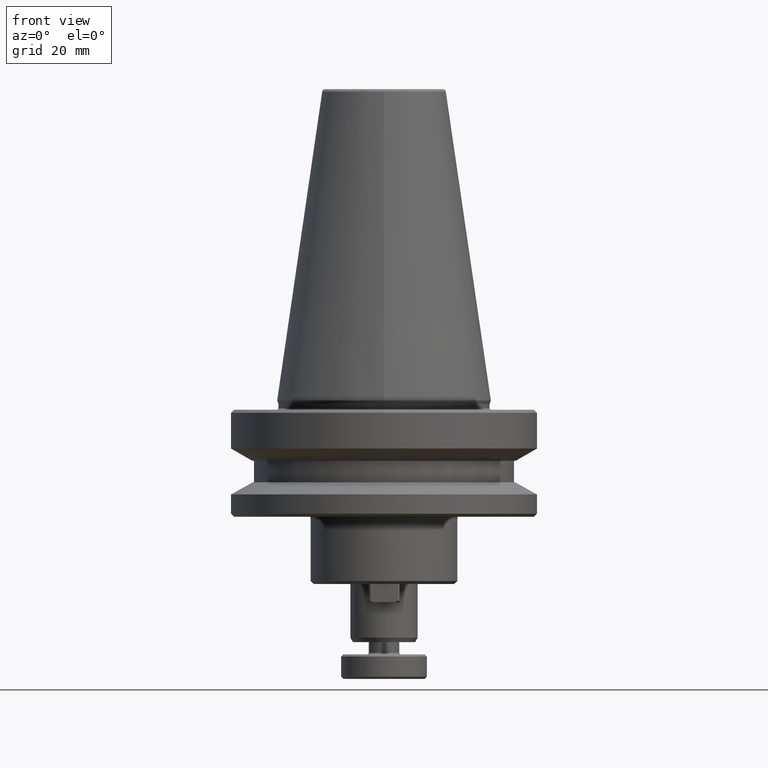
[diagram: clean part render]
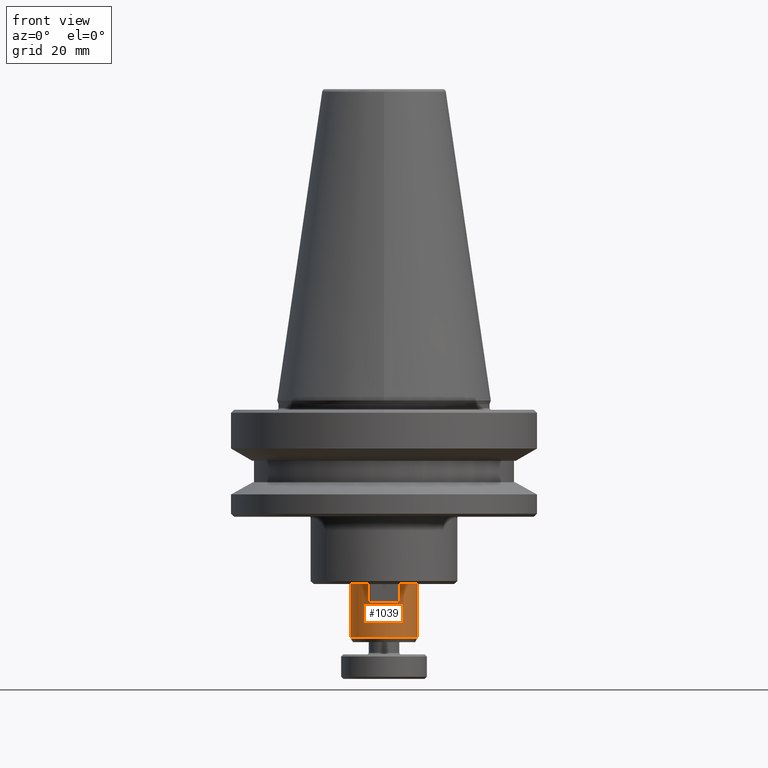
[diagram: same view with one face highlighted and labeled with its STEP entity id]
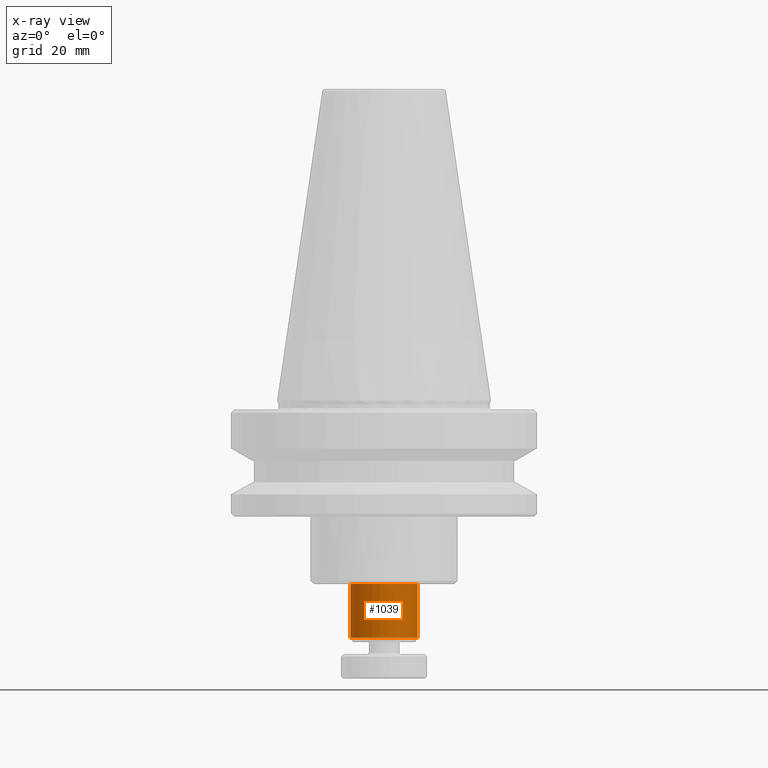
[diagram: x-ray of the same camera — body ghosted, the highlighted face saturated]
A machine part, front view. The second image highlights one B-rep face of the part: STEP entity #1039.
The next image is the same camera in x-ray: the body ghosted, the highlighted face saturated — about 0% of this face is hidden behind the body in this view.
In plain terms, the highlighted cylindrical surface (edge-blend (fillet) strip) has radius 11 mm, axis along (0, 0, 1).
Its self-contained STEP definition (entity closure, byte-faithful):
#180 = CARTESIAN_POINT ( 'NONE',  ( 11.00000000000001600, 0.0000000000000000000, -77.52775681356645500 ) ) ;
#190 = DIRECTION ( 'NONE',  ( 0.0000000000000000000, 0.0000000000000000000, 1.000000000000000000 ) ) ;
#200 = LINE ( 'NONE', #873, #717 ) ;
#206 = CARTESIAN_POINT ( 'NONE',  ( -11.00000000000001600, 1.347111479062090600E-015, -77.52775681356645500 ) ) ;
#236 = CARTESIAN_POINT ( 'NONE',  ( -11.00000000000000500, 1.347111479062089000E-015, 118.5507178974871000 ) ) ;
#365 = VERTEX_POINT ( 'NONE', #1969 ) ;
#685 = AXIS2_PLACEMENT_3D ( 'NONE', #2701, #2694, #2690 ) ;
#694 = ORIENTED_EDGE ( 'NONE', *, *, #2203, .T. ) ;
#717 = VECTOR ( 'NONE', #896, 1000.000000000000000 ) ;
#798 = VECTOR ( 'NONE', #190, 1000.000000000000000 ) ;
#873 = CARTESIAN_POINT ( 'NONE',  ( 11.00000000000000500, 0.0000000000000000000, 118.5507178974871000 ) ) ;
#896 = DIRECTION ( 'NONE',  ( 0.0000000000000000000, 0.0000000000000000000, 1.000000000000000000 ) ) ;
#911 = EDGE_CURVE ( 'NONE', #365, #2432, #2526, .T. ) ;
#1039 = ADVANCED_FACE ( 'NONE', ( #2089 ), #1521, .T. ) ;
#1051 = CIRCLE ( 'NONE', #685, 11.00000000000000500 ) ;
#1329 = DIRECTION ( 'NONE',  ( 0.0000000000000000000, 0.0000000000000000000, 1.000000000000000000 ) ) ;
#1344 = CARTESIAN_POINT ( 'NONE',  ( 0.0000000000000000000, 0.0000000000000000000, 118.5507178974871000 ) ) ;
#1353 = DIRECTION ( 'NONE',  ( 1.000000000000000000, 0.0000000000000000000, 0.0000000000000000000 ) ) ;
#1448 = ORIENTED_EDGE ( 'NONE', *, *, #2077, .F. ) ;
#1479 = DIRECTION ( 'NONE',  ( 1.000000000000000000, 0.0000000000000000000, 0.0000000000000000000 ) ) ;
#1481 = DIRECTION ( 'NONE',  ( 0.0000000000000000000, 0.0000000000000000000, 1.000000000000000000 ) ) ;
#1486 = CARTESIAN_POINT ( 'NONE',  ( 0.0000000000000000000, 0.0000000000000000000, -60.00000000000001400 ) ) ;
#1503 = EDGE_CURVE ( 'NONE', #2123, #2432, #200, .T. ) ;
#1521 = CYLINDRICAL_SURFACE ( 'NONE', #2290, 11.00000000000000500 ) ;
#1884 = ORIENTED_EDGE ( 'NONE', *, *, #911, .F. ) ;
#1969 = CARTESIAN_POINT ( 'NONE',  ( -11.00000000000000500, 1.347111479062089000E-015, -60.00000000000001400 ) ) ;
#2033 = CARTESIAN_POINT ( 'NONE',  ( 11.00000000000000500, 0.0000000000000000000, -60.00000000000001400 ) ) ;
#2062 = VERTEX_POINT ( 'NONE', #206 ) ;
#2077 = EDGE_CURVE ( 'NONE', #2062, #365, #2434, .T. ) ;
#2089 = FACE_OUTER_BOUND ( 'NONE', #2435, .T. ) ;
#2123 = VERTEX_POINT ( 'NONE', #180 ) ;
#2203 = EDGE_CURVE ( 'NONE', #2062, #2123, #1051, .T. ) ;
#2290 = AXIS2_PLACEMENT_3D ( 'NONE', #1344, #1329, #1353 ) ;
#2432 = VERTEX_POINT ( 'NONE', #2033 ) ;
#2434 = LINE ( 'NONE', #236, #798 ) ;
#2435 = EDGE_LOOP ( 'NONE', ( #1448, #694, #2749, #1884 ) ) ;
#2526 = CIRCLE ( 'NONE', #2632, 11.00000000000000500 ) ;
#2632 = AXIS2_PLACEMENT_3D ( 'NONE', #1486, #1481, #1479 ) ;
#2690 = DIRECTION ( 'NONE',  ( 1.000000000000000000, 0.0000000000000000000, 0.0000000000000000000 ) ) ;
#2694 = DIRECTION ( 'NONE',  ( 0.0000000000000000000, 0.0000000000000000000, 1.000000000000000000 ) ) ;
#2701 = CARTESIAN_POINT ( 'NONE',  ( 0.0000000000000000000, 0.0000000000000000000, -77.52775681356645500 ) ) ;
#2749 = ORIENTED_EDGE ( 'NONE', *, *, #1503, .T. ) ;